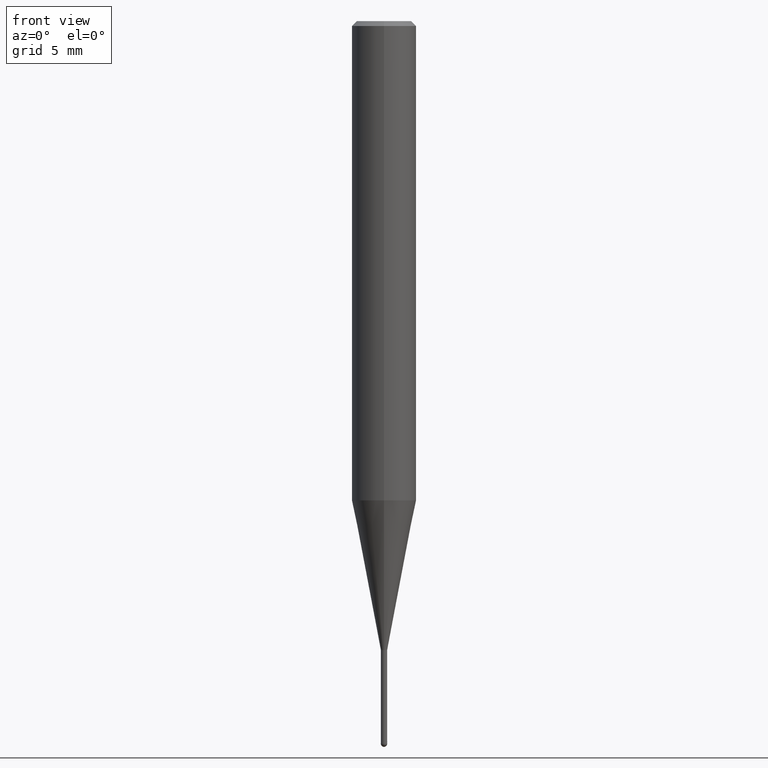
[diagram: clean part render]
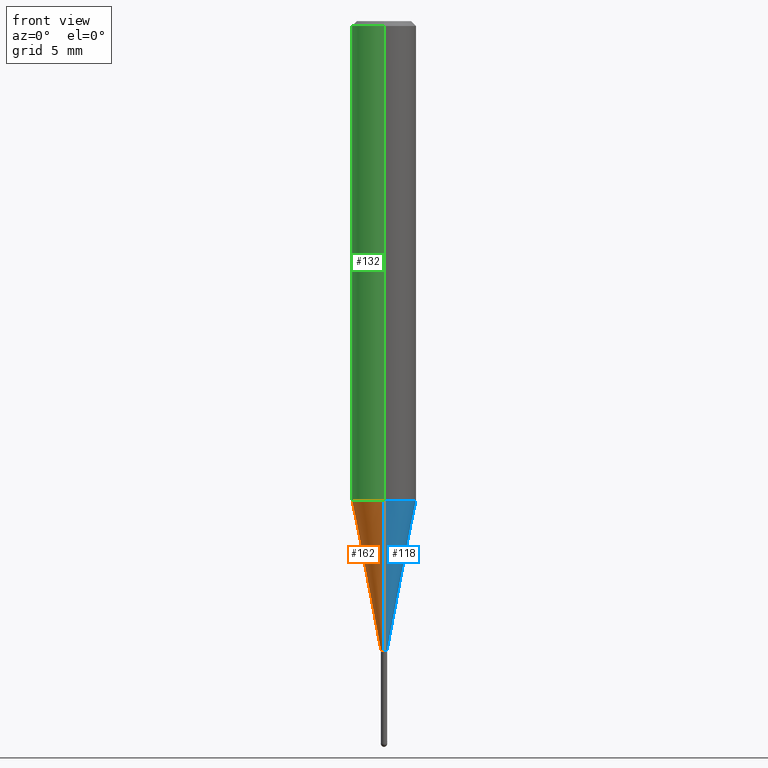
[diagram: same view with three faces highlighted in distinct colors, each labeled with its STEP entity id]
A machine part, front view with three faces highlighted in distinct colors.
Their STEP definitions:

[orange] entity #162 — the highlighted conical surface has half-angle 11 deg.
#96=VERTEX_POINT('',#237);
#112=VERTEX_POINT('',#256);
#126=VERTEX_POINT('',#271);
#152=EDGE_CURVE('',#96,#126,#301,.T.);
#160=EDGE_CURVE('',#112,#208,#310,.T.);
#162=ADVANCED_FACE('',(#312),#313,.T.);
#172=EDGE_CURVE('',#126,#112,#324,.T.);
#194=EDGE_CURVE('',#96,#208,#349,.T.);
#208=VERTEX_POINT('',#365);
#237=CARTESIAN_POINT('',(2.38737008677672E-017,-0.19495,-39.0));
#256=CARTESIAN_POINT('',(0.0,1.99995,-29.714));
#271=CARTESIAN_POINT('',(2.44915147732706E-016,-1.99995,-29.714));
#301=LINE('',#471,#472);
#310=LINE('',#483,#484);
#312=FACE_OUTER_BOUND('',#486,.T.);
#313=CONICAL_SURFACE('',#487,1.09745,0.191984604054908);
#324=CIRCLE('',#503,1.99995);
#349=CIRCLE('',#535,0.19495);
#365=CARTESIAN_POINT('',(0.0,0.19495,-39.0));
#471=CARTESIAN_POINT('',(1.34394424300237E-016,-1.09745,-34.357));
#472=VECTOR('',#645,1.0);
#483=CARTESIAN_POINT('',(-1.34394424300237E-016,1.09745,-34.357));
#484=VECTOR('',#655,1.0);
#486=EDGE_LOOP('',(#657,#658,#659,#660));
#487=AXIS2_PLACEMENT_3D('',#661,#662,#663);
#503=AXIS2_PLACEMENT_3D('',#677,#678,#679);
#535=AXIS2_PLACEMENT_3D('',#714,#715,#716);
#645=DIRECTION('',(2.33663968307108E-017,-0.190807411359389,0.981627491348082));
#655=DIRECTION('',(2.33663968307108E-017,-0.190807411359389,-0.981627491348082));
#657=ORIENTED_EDGE('',*,*,#160,.T.);
#658=ORIENTED_EDGE('',*,*,#194,.F.);
#659=ORIENTED_EDGE('',*,*,#152,.T.);
#660=ORIENTED_EDGE('',*,*,#172,.T.);
#661=CARTESIAN_POINT('',(0.0,0.0,-34.357));
#662=DIRECTION('',(-0.0,-0.0,1.0));
#663=DIRECTION('',(0.0,1.0,0.0));
#677=CARTESIAN_POINT('',(0.0,0.0,-29.714));
#678=DIRECTION('',(0.0,0.0,-1.0));
#679=DIRECTION('',(0.0,1.0,0.0));
#714=CARTESIAN_POINT('',(0.0,0.0,-39.0));
#715=DIRECTION('',(0.0,0.0,-1.0));
#716=DIRECTION('',(0.0,1.0,0.0));

[blue] entity #118 — the highlighted conical surface has half-angle 11 deg.
#96=VERTEX_POINT('',#237);
#112=VERTEX_POINT('',#256);
#114=EDGE_CURVE('',#112,#126,#258,.T.);
#118=ADVANCED_FACE('',(#262),#263,.T.);
#122=EDGE_CURVE('',#208,#96,#267,.T.);
#126=VERTEX_POINT('',#271);
#152=EDGE_CURVE('',#96,#126,#301,.T.);
#160=EDGE_CURVE('',#112,#208,#310,.T.);
#208=VERTEX_POINT('',#365);
#237=CARTESIAN_POINT('',(2.38737008677672E-017,-0.19495,-39.0));
#256=CARTESIAN_POINT('',(0.0,1.99995,-29.714));
#258=CIRCLE('',#413,1.99995);
#262=FACE_OUTER_BOUND('',#418,.T.);
#263=CONICAL_SURFACE('',#419,1.09745,0.191984604054908);
#267=CIRCLE('',#426,0.19495);
#271=CARTESIAN_POINT('',(2.44915147732706E-016,-1.99995,-29.714));
#301=LINE('',#471,#472);
#310=LINE('',#483,#484);
#365=CARTESIAN_POINT('',(0.0,0.19495,-39.0));
#413=AXIS2_PLACEMENT_3D('',#585,#586,#587);
#418=EDGE_LOOP('',(#592,#593,#594,#595));
#419=AXIS2_PLACEMENT_3D('',#596,#597,#598);
#426=AXIS2_PLACEMENT_3D('',#600,#601,#602);
#471=CARTESIAN_POINT('',(1.34394424300237E-016,-1.09745,-34.357));
#472=VECTOR('',#645,1.0);
#483=CARTESIAN_POINT('',(-1.34394424300237E-016,1.09745,-34.357));
#484=VECTOR('',#655,1.0);
#585=CARTESIAN_POINT('',(0.0,0.0,-29.714));
#586=DIRECTION('',(0.0,0.0,-1.0));
#587=DIRECTION('',(0.0,1.0,0.0));
#592=ORIENTED_EDGE('',*,*,#160,.F.);
#593=ORIENTED_EDGE('',*,*,#114,.T.);
#594=ORIENTED_EDGE('',*,*,#152,.F.);
#595=ORIENTED_EDGE('',*,*,#122,.F.);
#596=CARTESIAN_POINT('',(0.0,0.0,-34.357));
#597=DIRECTION('',(-0.0,-0.0,1.0));
#598=DIRECTION('',(0.0,1.0,0.0));
#600=CARTESIAN_POINT('',(0.0,0.0,-39.0));
#601=DIRECTION('',(0.0,0.0,-1.0));
#602=DIRECTION('',(0.0,1.0,0.0));
#645=DIRECTION('',(2.33663968307108E-017,-0.190807411359389,0.981627491348082));
#655=DIRECTION('',(2.33663968307108E-017,-0.190807411359389,-0.981627491348082));

[green] entity #132 — the highlighted cylindrical surface (edge-blend (fillet) strip) has radius 2 mm, axis along (-0, -0, 1).
#94=VERTEX_POINT('',#235);
#116=EDGE_CURVE('',#204,#212,#260,.T.);
#120=EDGE_CURVE('',#158,#212,#265,.T.);
#132=ADVANCED_FACE('',(#277),#278,.T.);
#146=EDGE_CURVE('',#204,#94,#294,.T.);
#158=VERTEX_POINT('',#308);
#190=EDGE_CURVE('',#94,#158,#345,.T.);
#204=VERTEX_POINT('',#360);
#212=VERTEX_POINT('',#369);
#235=CARTESIAN_POINT('',(2.44921270764475E-016,-2.0,-0.300000000000001));
#260=CIRCLE('',#416,2.0);
#265=LINE('',#422,#423);
#277=FACE_OUTER_BOUND('',#438,.T.);
#278=CYLINDRICAL_SURFACE('',#439,2.0);
#294=LINE('',#460,#461);
#308=CARTESIAN_POINT('',(0.0,2.0,-0.300000000000001));
#345=CIRCLE('',#531,2.0);
#360=CARTESIAN_POINT('',(2.44921270764475E-016,-2.0,-29.714));
#369=CARTESIAN_POINT('',(0.0,2.0,-29.714));
#416=AXIS2_PLACEMENT_3D('',#588,#589,#590);
#422=CARTESIAN_POINT('',(-2.44921270764475E-016,2.0,-15.007));
#423=VECTOR('',#599,1.0);
#438=EDGE_LOOP('',(#605,#606,#607,#608));
#439=AXIS2_PLACEMENT_3D('',#609,#610,#611);
#460=CARTESIAN_POINT('',(2.44921270764475E-016,-2.0,-15.007));
#461=VECTOR('',#635,1.0);
#531=AXIS2_PLACEMENT_3D('',#710,#711,#712);
#588=CARTESIAN_POINT('',(0.0,0.0,-29.714));
#589=DIRECTION('',(0.0,0.0,-1.0));
#590=DIRECTION('',(0.0,1.0,0.0));
#599=DIRECTION('',(0.0,0.0,-1.0));
#605=ORIENTED_EDGE('',*,*,#120,.T.);
#606=ORIENTED_EDGE('',*,*,#116,.F.);
#607=ORIENTED_EDGE('',*,*,#146,.T.);
#608=ORIENTED_EDGE('',*,*,#190,.T.);
#609=CARTESIAN_POINT('',(0.0,0.0,-15.007));
#610=DIRECTION('',(-0.0,-0.0,1.0));
#611=DIRECTION('',(0.0,1.0,0.0));
#635=DIRECTION('',(-0.0,-0.0,1.0));
#710=CARTESIAN_POINT('',(0.0,0.0,-0.300000000000001));
#711=DIRECTION('',(0.0,0.0,-1.0));
#712=DIRECTION('',(0.0,1.0,0.0));